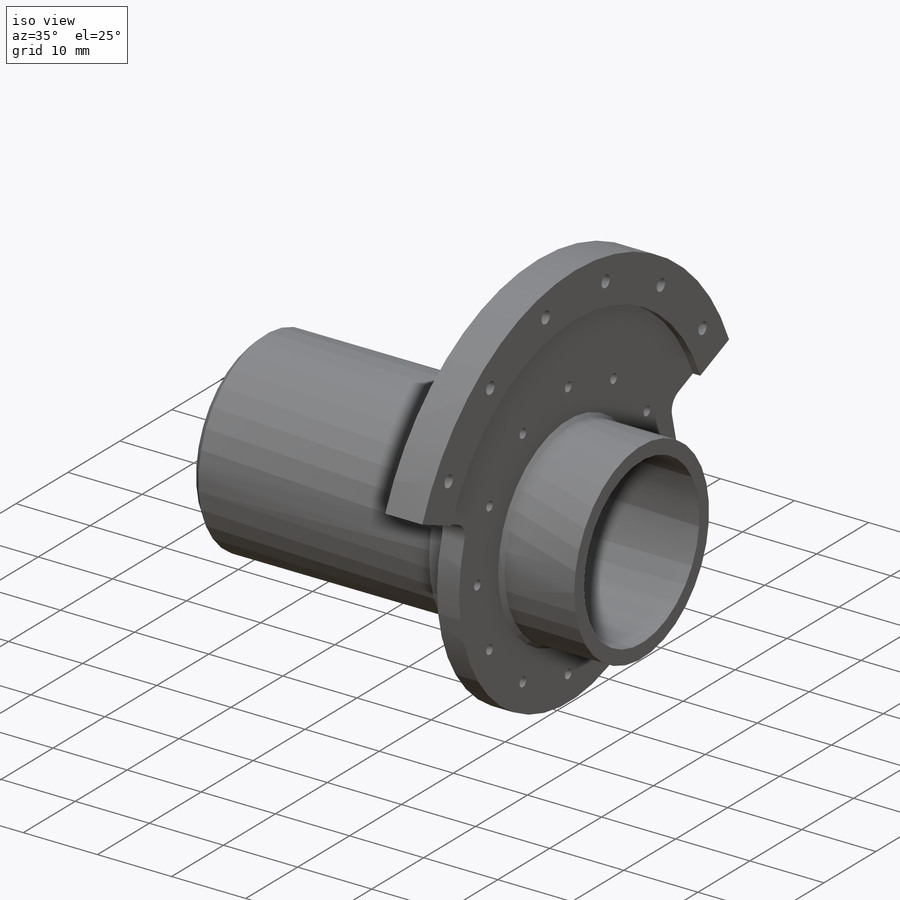
[diagram: iso view]
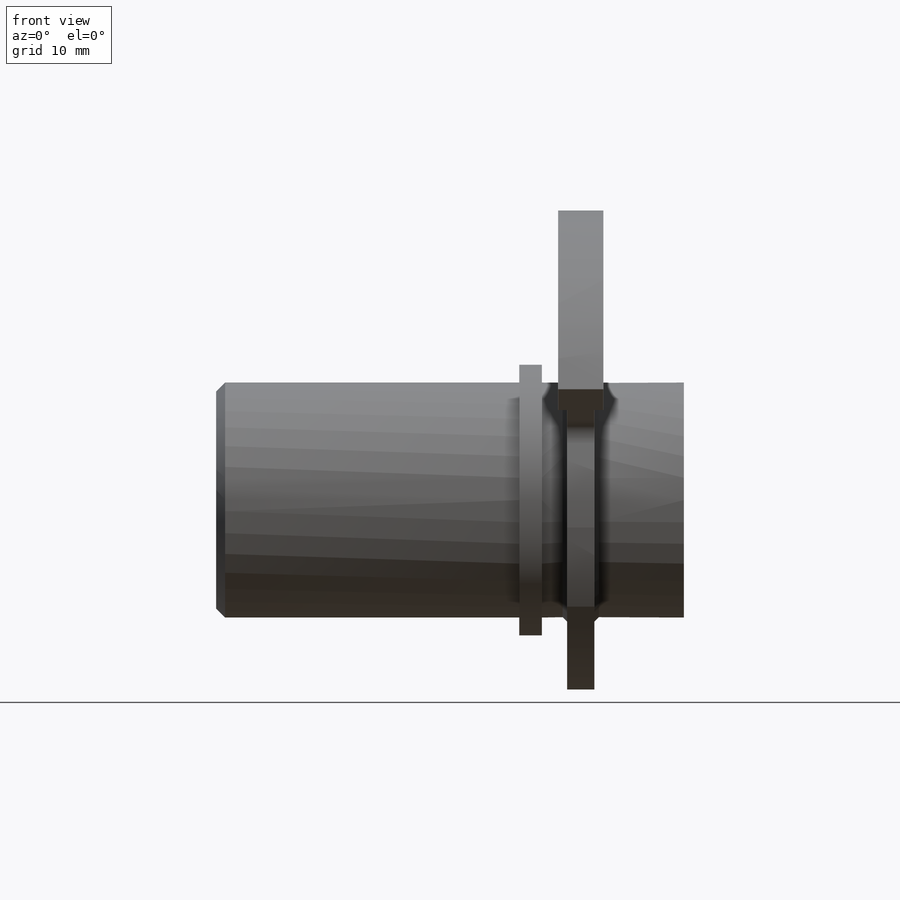
[diagram: front view]
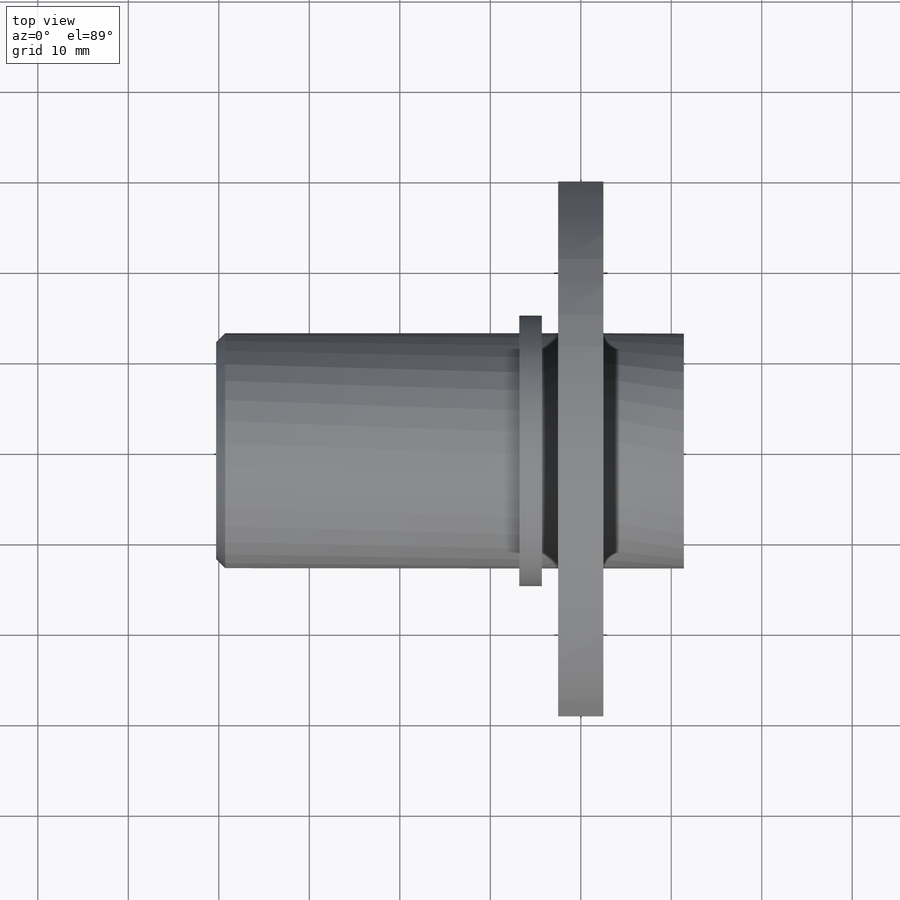
[diagram: top view]
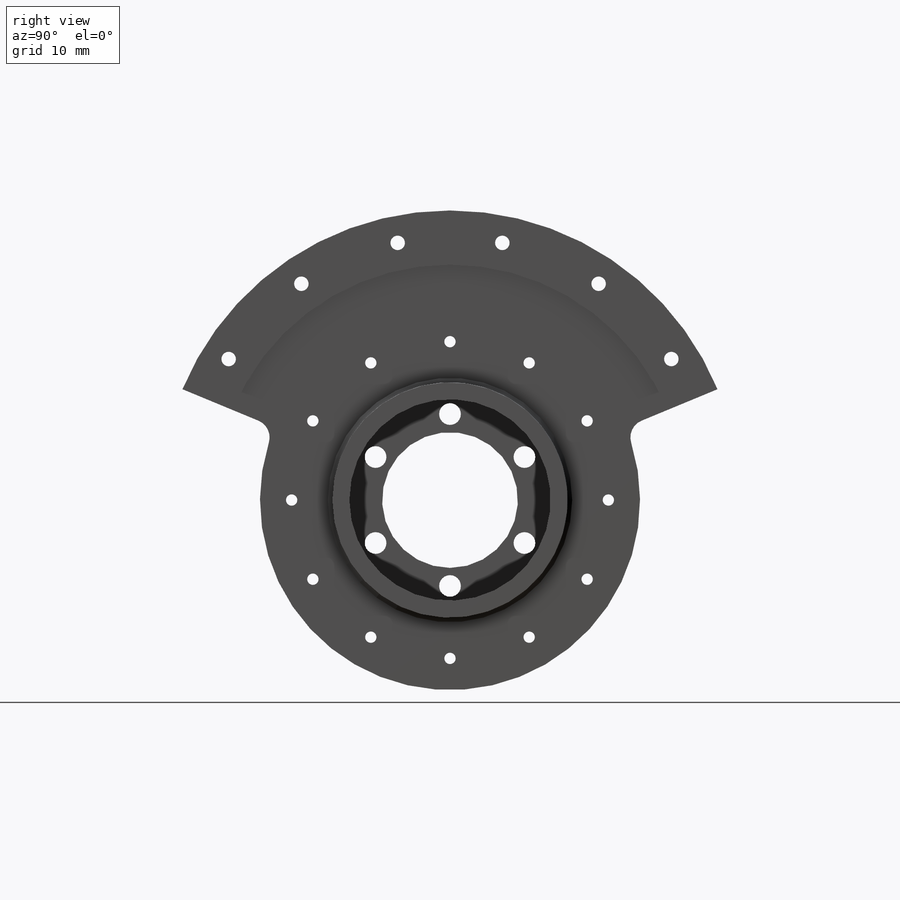
[diagram: right view]
SOLIDWORKS PART (.sldprt)
format: sldprt  version: not decoded by parser v0  size: 468,992 bytes
history: native  units: mm
features: sketch x16, revolve x7, chamfer x3, hole x3, pattern_circular x2, material x1, fillet x1, cut_revolve x1 (+12 scaffold rows collapsed)
feature tree (46):
  scaffold x12  (default folders/planes/origin — collapsed)
  material  "ABS"
  sketch  "Sketch1"  dims[D1=26.0mm D2=22.25mm D3=51.7mm D4=11.4mm]
  revolve  "Revolve1"  Angle=360deg
  sketch  "Sketch2"  dims[D1=3.0mm D2=15.0mm]
  revolve  "Revolve2"  Angle=360deg
  chamfer  "Chamfer1"  Distance=1mm Angle=45deg
  hole  "M2 Clearance Hole1"  Diameter=2.4mm Depth=11.5mm
  sketch  "Sketch5"  dims[D1=19.0mm]
  sketch  "Sketch4"  dims[hole-wizard template sketch: 50 standard entries collapsed; hole parameters above]
  pattern_circular  "CirPattern1"  Count=6 Angle=360deg
  sketch  "Sketch6"  dims[D1=3.0mm D2=64.0mm]
  revolve  "Revolve3"  Angle=135deg
  sketch  "Sketch9"  dims[c1.D1=8.0mm c1.D2=3.0mm c2.D1=42.0mm]
  revolve  "Revolve4"  Angle=360deg
  sketch  "Sketch10"  dims[c1.D1=42.0mm c1.D2=26.0mm c1.D3=~6.461363mm c1.D5=6.0mm c1.D6=6.0mm c2.D2=0.5mm c2.D3=15.5mm c2.D4=55.0mm c2.D6=3.0mm c2.D7=20.0mm]
  chamfer  "Chamfer2"  Distance=0.5mm Angle=45deg
  sketch  "Sketch11"  dims[D1=5.0mm D2=52.0mm]
  revolve  "Revolve5"  Angle=135deg
  sketch  "Sketch12"
  chamfer  "Chamfer4"  Distance=1mm Angle=45deg
  hole  "Tap Drill for M1.6 Tap1"  Diameter=1.25mm Depth=11.5mm
  sketch  "Sketch16"  dims[D1=35.0mm]
  sketch  "Sketch15"  dims[hole-wizard template sketch: 47 standard entries collapsed; hole parameters kept: c15.Hole Depth=11.5mm c15.D3=~14.816244mm c15.Drill Angle=180.0deg]
  pattern_circular  "CirPattern2"  Count=12 Angle=30deg
  fillet  "Fillet1"  Radius=2mm
  sketch  "Sketch17"  dims[D1=2.5mm D2=33.5mm D3=29.9mm]
  revolve  "Revolve6"  Angle=360deg
  sketch  "Esquisse1"  dims[D1=1.0mm]
  cut_revolve  "Enlèvement de matière-Révolution1"  Angle=360deg
  sketch  "Esquisse2"  dims[D1=1.0mm]
  revolve  "Révolution4"  Angle=135deg
  hole  "Trou pour taraudage pour trou taraudé M21"  Diameter=1.6mm Depth=41.8mm
  sketch  "Sketch14"
  sketch  "Sketch13"  dims[hole-wizard template sketch: 46 standard entries collapsed; hole parameters kept: c15.Diamètre du perçage=1.6mm c15.Profondeur du perçage=41.8mm c15.D3=~14.816244mm c15.Angle de pointe=180.0deg]
decode coverage: 31 of 33 modeling features carry decoded parameters
note: ~ marks probable driven/reference dimensions
note: suppression state not decoded; provenance and decode notes live in map.json
